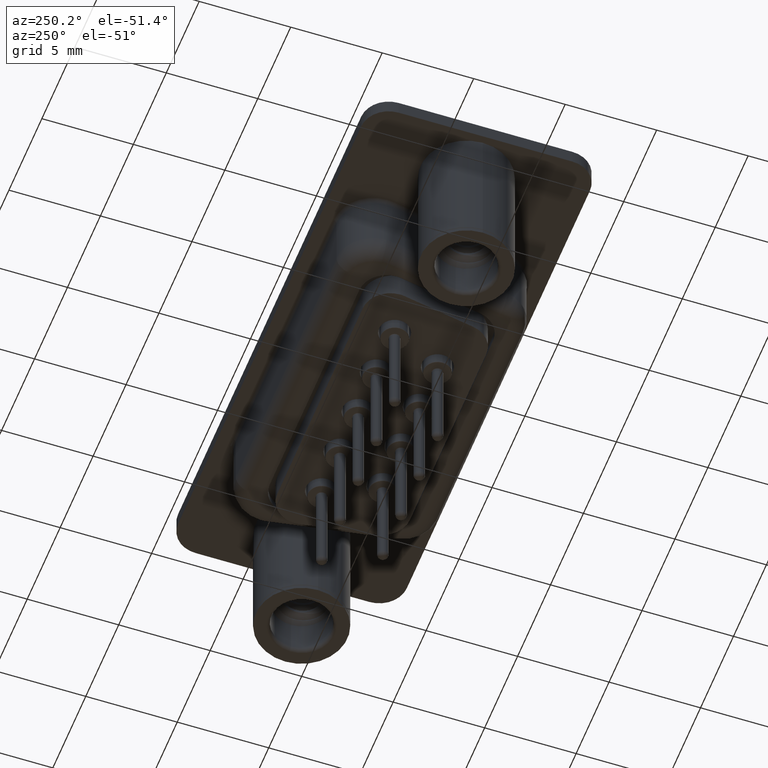
[diagram: clean part render]
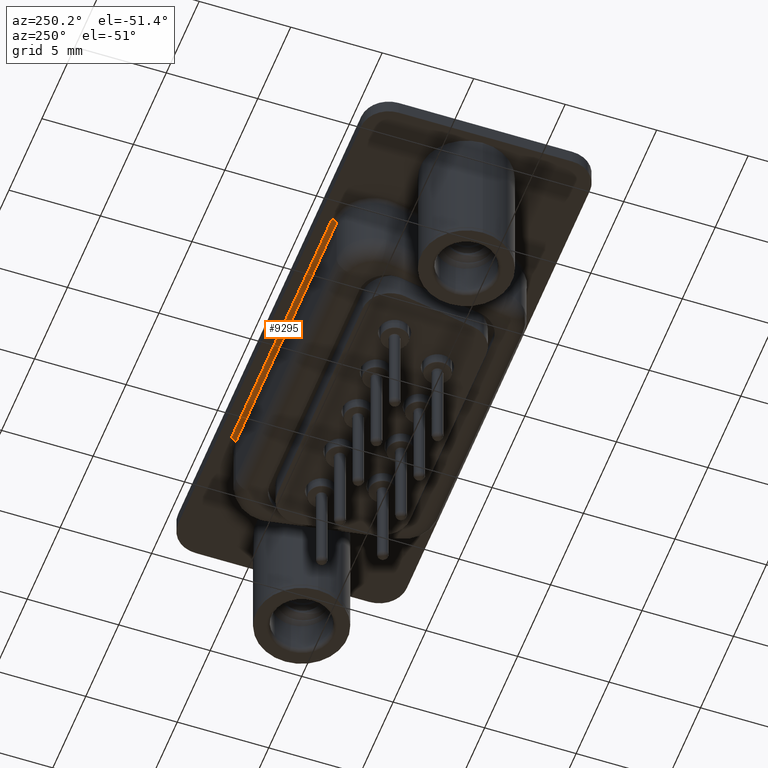
[diagram: same view with one face highlighted and labeled with its STEP entity id]
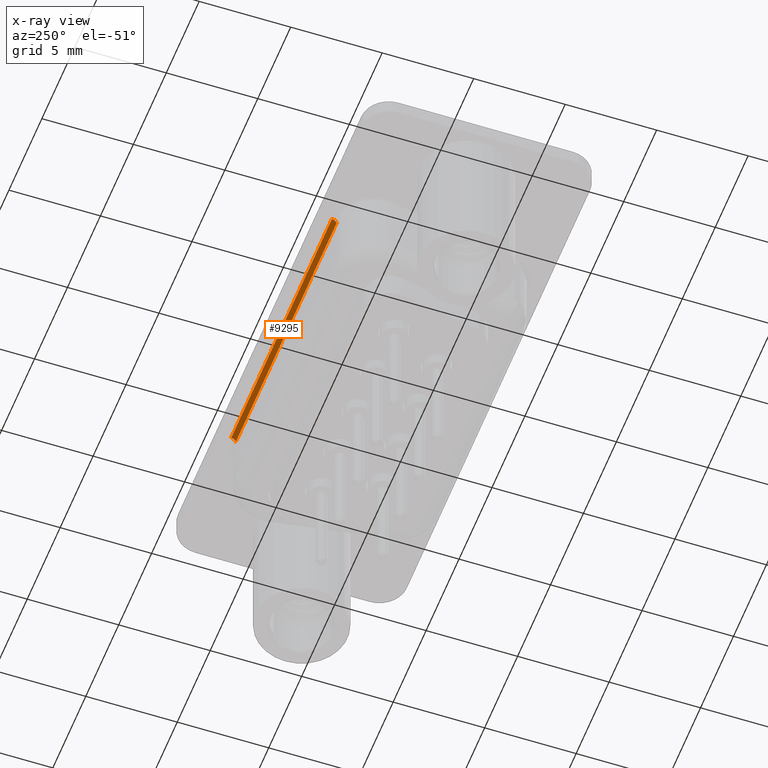
[diagram: x-ray of the same camera — body ghosted, the highlighted face saturated]
A machine part, auxiliary view. The second image highlights one B-rep face of the part: STEP entity #9295.
The next image is the same camera in x-ray: the body ghosted, the highlighted face saturated — about 0% of this face is hidden behind the body in this view.
In plain terms, the highlighted cylindrical surface (edge-blend (fillet) strip) has radius 0.25 mm, axis along (1, 0, 0).
Its self-contained STEP definition (entity closure, byte-faithful):
#337 = EDGE_CURVE ( 'NONE', #11581, #10648, #5859, .T. ) ;
#355 = DIRECTION ( 'NONE',  ( 1.000000000000000000, 0.0000000000000000000, 0.0000000000000000000 ) ) ;
#1083 = CARTESIAN_POINT ( 'NONE',  ( 20.15000000000000924, 5.600000000000004974, -0.6500000000000000222 ) ) ;
#3258 = ORIENTED_EDGE ( 'NONE', *, *, #8206, .F. ) ;
#3322 = LINE ( 'NONE', #12015, #5781 ) ;
#3502 = CARTESIAN_POINT ( 'NONE',  ( 4.850000000000006750, 5.600000000000005862, -0.6500000000000000222 ) ) ;
#4195 = VECTOR ( 'NONE', #5722, 1000.000000000000000 ) ;
#4332 = CARTESIAN_POINT ( 'NONE',  ( 20.15000000000000924, 5.350000000000005862, -0.6500000000000000222 ) ) ;
#4827 = CARTESIAN_POINT ( 'NONE',  ( 4.850000000000006750, 5.600000000000005862, -0.4000000000000000222 ) ) ;
#4894 = DIRECTION ( 'NONE',  ( -1.000000000000000000, -0.0000000000000000000, -0.0000000000000000000 ) ) ;
#5722 = DIRECTION ( 'NONE',  ( 1.000000000000000000, 0.0000000000000000000, 0.0000000000000000000 ) ) ;
#5781 = VECTOR ( 'NONE', #4894, 1000.000000000000000 ) ;
#5859 = CIRCLE ( 'NONE', #15172, 0.2500000000000000000 ) ;
#6621 = FACE_OUTER_BOUND ( 'NONE', #12567, .T. ) ;
#7863 = CARTESIAN_POINT ( 'NONE',  ( 20.15000000000000924, 5.600000000000005862, -0.6500000000000000222 ) ) ;
#7935 = CYLINDRICAL_SURFACE ( 'NONE', #14676, 0.2500000000000000000 ) ;
#8122 = EDGE_CURVE ( 'NONE', #11112, #10648, #14397, .T. ) ;
#8206 = EDGE_CURVE ( 'NONE', #9579, #11112, #13361, .T. ) ;
#8664 = EDGE_CURVE ( 'NONE', #11581, #9579, #3322, .T. ) ;
#8909 = AXIS2_PLACEMENT_3D ( 'NONE', #3502, #12275, #15848 ) ;
#9014 = DIRECTION ( 'NONE',  ( 0.0000000000000000000, 0.0000000000000000000, -1.000000000000000000 ) ) ;
#9295 = ADVANCED_FACE ( 'NONE', ( #6621 ), #7935, .F. ) ;
#9579 = VERTEX_POINT ( 'NONE', #4827 ) ;
#10648 = VERTEX_POINT ( 'NONE', #15393 ) ;
#10967 = ORIENTED_EDGE ( 'NONE', *, *, #8664, .F. ) ;
#11112 = VERTEX_POINT ( 'NONE', #13608 ) ;
#11155 = CARTESIAN_POINT ( 'NONE',  ( 20.15000000000000924, 5.600000000000005862, -0.4000000000000000222 ) ) ;
#11239 = DIRECTION ( 'NONE',  ( 1.000000000000000000, 0.0000000000000000000, -0.0000000000000000000 ) ) ;
#11581 = VERTEX_POINT ( 'NONE', #11155 ) ;
#12015 = CARTESIAN_POINT ( 'NONE',  ( -1.399999999999995026, 5.600000000000005862, -0.4000000000000000222 ) ) ;
#12275 = DIRECTION ( 'NONE',  ( 1.000000000000000000, 0.0000000000000000000, -0.0000000000000000000 ) ) ;
#12536 = ORIENTED_EDGE ( 'NONE', *, *, #8122, .F. ) ;
#12567 = EDGE_LOOP ( 'NONE', ( #13318, #12536, #3258, #10967 ) ) ;
#13318 = ORIENTED_EDGE ( 'NONE', *, *, #337, .T. ) ;
#13361 = CIRCLE ( 'NONE', #8909, 0.2500000000000000000 ) ;
#13608 = CARTESIAN_POINT ( 'NONE',  ( 4.850000000000006750, 5.350000000000005862, -0.6500000000000000222 ) ) ;
#14397 = LINE ( 'NONE', #4332, #4195 ) ;
#14676 = AXIS2_PLACEMENT_3D ( 'NONE', #7863, #355, #9014 ) ;
#15172 = AXIS2_PLACEMENT_3D ( 'NONE', #1083, #11239, #16021 ) ;
#15393 = CARTESIAN_POINT ( 'NONE',  ( 20.15000000000000924, 5.350000000000005862, -0.6500000000000000222 ) ) ;
#15848 = DIRECTION ( 'NONE',  ( 0.0000000000000000000, 0.0000000000000000000, -1.000000000000000000 ) ) ;
#16021 = DIRECTION ( 'NONE',  ( 0.0000000000000000000, 0.0000000000000000000, -1.000000000000000000 ) ) ;